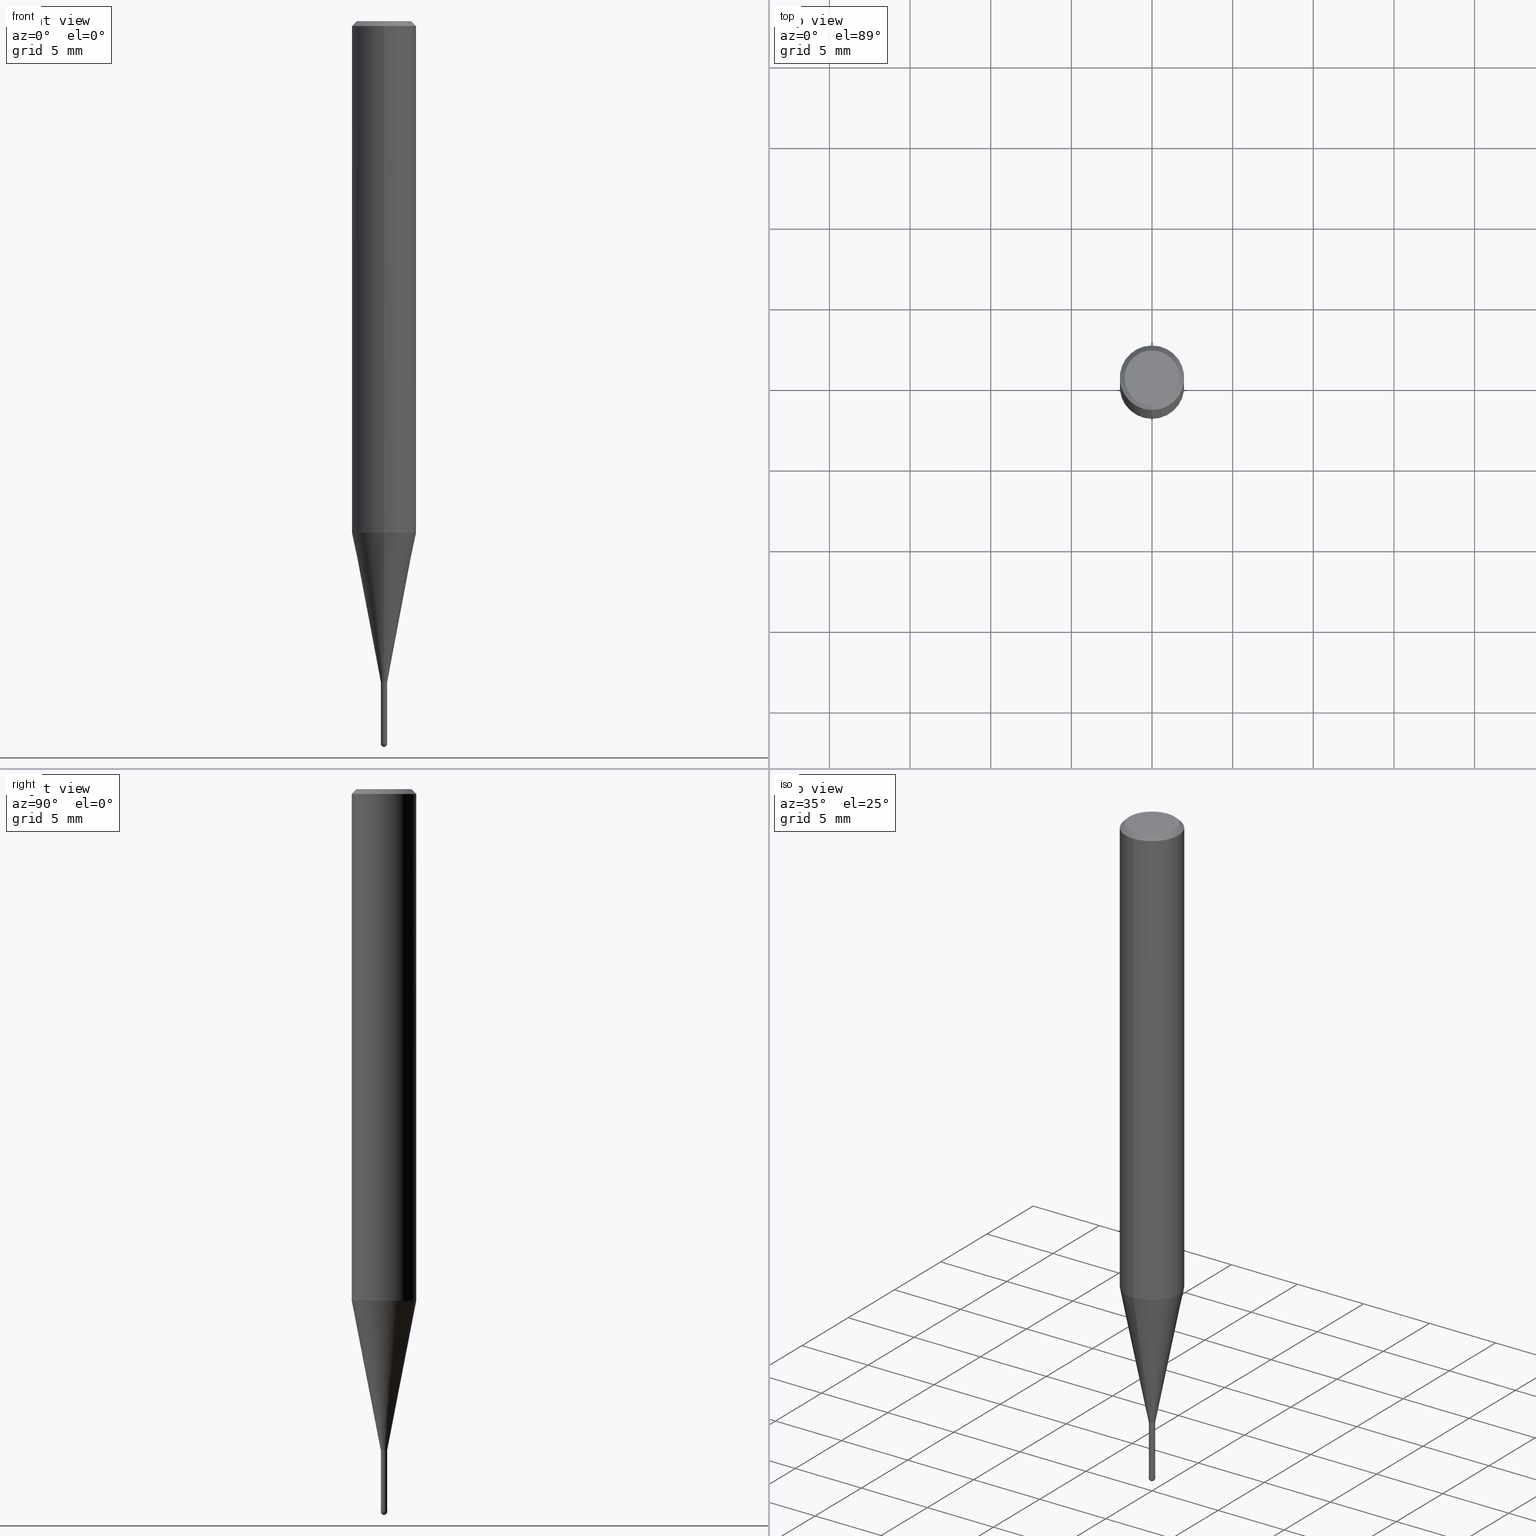
[diagram: canonical four-view strip — front | top / right | iso, engineering-drawing reading convention]
A machine part, canonical four-view strip (front | top / right | iso — engineering-drawing reading convention). The complete STEP part file that produces these views, byte-faithful:
ISO-10303-21;
HEADER;
FILE_DESCRIPTION(('no description'),'unknown implementation level');
FILE_NAME('CSELB2004-040-Huellk.stp','  ',('CIMSOURCE GmbH'),('CADClick - KiM GmbH - www.kimweb.de'),'unknown preprocess','ACIS','unknown authorization');
FILE_SCHEMA(('automotive_design'));
ENDSEC;
DATA;
#1=MECHANICAL_DESIGN_GEOMETRIC_PRESENTATION_REPRESENTATION(' ',(#14,#15,#16,#17,#18,#19,#20,#21,#22,#23,#24,#25,#26,#27,#28,#29,#30,#31,#32,#33,#34,#35,#36,#37,#38,#39,#40,#41,#42,#43,#44,#45,#46,#47,#48,#49,#50,#51,#52,#53,#54,#55,#56,#57,#58,#59,#60,#61,#62,#63,#64,#65,#66,#67,#68,#69,#70,#71,#72,#73,#74),#10);
#2=PRODUCT_DEFINITION_CONTEXT('',#75,'design');
#3=APPLICATION_PROTOCOL_DEFINITION('INTERNATIONAL STANDARD','automotive_design',1994,#75);
#4=PRODUCT_CATEGORY_RELATIONSHIP('NONE','NONE',#76,#77);
#5=SHAPE_DEFINITION_REPRESENTATION(#78,#79);
#6=PRODUCT_DEFINITION_CONTEXT('',#80,'design');
#7=APPLICATION_PROTOCOL_DEFINITION('INTERNATIONAL STANDARD','automotive_design',1994,#80);
#8=PRODUCT_CATEGORY_RELATIONSHIP('NONE','NONE',#81,#82);
#9=SHAPE_DEFINITION_REPRESENTATION(#83,#84);
#10= (GEOMETRIC_REPRESENTATION_CONTEXT(3)GLOBAL_UNCERTAINTY_ASSIGNED_CONTEXT((#87))GLOBAL_UNIT_ASSIGNED_CONTEXT((#89,#90,#91))REPRESENTATION_CONTEXT('NONE','WORKSPACE'));
#14=STYLED_ITEM('',(#93),#94);
#15=STYLED_ITEM('',(#95),#96);
#16=STYLED_ITEM('',(#97),#98);
#17=STYLED_ITEM('',(#99),#100);
#18=STYLED_ITEM('',(#101),#102);
#19=STYLED_ITEM('',(#103),#104);
#20=STYLED_ITEM('',(#105),#106);
#21=STYLED_ITEM('',(#107),#108);
#22=STYLED_ITEM('',(#109),#110);
#23=STYLED_ITEM('',(#111),#112);
#24=STYLED_ITEM('',(#113),#114);
#25=STYLED_ITEM('',(#115),#116);
#26=STYLED_ITEM('',(#117),#118);
#27=STYLED_ITEM('',(#119),#120);
#28=STYLED_ITEM('',(#121),#122);
#29=STYLED_ITEM('',(#123),#124);
#30=STYLED_ITEM('',(#125),#126);
#31=STYLED_ITEM('',(#127),#128);
#32=STYLED_ITEM('',(#129),#130);
#33=STYLED_ITEM('',(#131),#132);
#34=STYLED_ITEM('',(#133),#134);
#35=STYLED_ITEM('',(#135),#136);
#36=STYLED_ITEM('',(#137),#138);
#37=STYLED_ITEM('',(#139),#140);
#38=STYLED_ITEM('',(#141),#142);
#39=STYLED_ITEM('',(#143),#144);
#40=STYLED_ITEM('',(#145),#146);
#41=STYLED_ITEM('',(#147),#148);
#42=STYLED_ITEM('',(#149),#150);
#43=STYLED_ITEM('',(#151),#152);
#44=STYLED_ITEM('',(#153),#154);
#45=STYLED_ITEM('',(#155),#156);
#46=STYLED_ITEM('',(#157),#158);
#47=STYLED_ITEM('',(#159),#160);
#48=STYLED_ITEM('',(#161),#162);
#49=STYLED_ITEM('',(#163),#164);
#50=STYLED_ITEM('',(#165),#166);
#51=STYLED_ITEM('',(#167),#168);
#52=STYLED_ITEM('',(#169),#170);
#53=STYLED_ITEM('',(#171),#172);
#54=STYLED_ITEM('',(#173),#174);
#55=STYLED_ITEM('',(#175),#176);
#56=STYLED_ITEM('',(#177),#178);
#57=STYLED_ITEM('',(#179),#180);
#58=STYLED_ITEM('',(#181),#182);
#59=STYLED_ITEM('',(#183),#184);
#60=STYLED_ITEM('',(#185),#186);
#61=STYLED_ITEM('',(#187),#188);
#62=STYLED_ITEM('',(#189),#190);
#63=STYLED_ITEM('',(#191),#192);
#64=STYLED_ITEM('',(#193),#194);
#65=STYLED_ITEM('',(#195),#196);
#66=STYLED_ITEM('',(#197),#198);
#67=STYLED_ITEM('',(#199),#200);
#68=STYLED_ITEM('',(#201),#202);
#69=STYLED_ITEM('',(#203),#204);
#70=STYLED_ITEM('',(#205),#206);
#71=STYLED_ITEM('',(#207),#208);
#72=STYLED_ITEM('',(#209),#210);
#73=STYLED_ITEM('',(#211),#212);
#74=STYLED_ITEM('',(#213),#214);
#75=APPLICATION_CONTEXT(' ');
#76=PRODUCT_CATEGORY('part','NONE');
#77=PRODUCT_RELATED_PRODUCT_CATEGORY('detail',' ',(#215));
#78=PRODUCT_DEFINITION_SHAPE('NONE','NONE',#216);
#79=ADVANCED_BREP_SHAPE_REPRESENTATION('1',(#180,#217),#10);
#80=APPLICATION_CONTEXT(' ');
#81=PRODUCT_CATEGORY('part','NONE');
#82=PRODUCT_RELATED_PRODUCT_CATEGORY('detail',' ',(#218));
#83=PRODUCT_DEFINITION_SHAPE('NONE','NONE',#219);
#84=ADVANCED_BREP_SHAPE_REPRESENTATION('2',(#146,#220),#10);
#87=UNCERTAINTY_MEASURE_WITH_UNIT(LENGTH_MEASURE(1.0E-006),#89,'','');
#89= (CONVERSION_BASED_UNIT('MILLIMETRE',#223)LENGTH_UNIT()NAMED_UNIT(#226));
#90= (NAMED_UNIT(#228)PLANE_ANGLE_UNIT()SI_UNIT($,.RADIAN.));
#91= (NAMED_UNIT(#228)SOLID_ANGLE_UNIT()SI_UNIT($,.STERADIAN.));
#93=PRESENTATION_STYLE_ASSIGNMENT((#234));
#94=ADVANCED_FACE('',(#235),#236,.T.);
#95=PRESENTATION_STYLE_ASSIGNMENT((#237));
#96=EDGE_CURVE('',#200,#156,#238,.T.);
#97=PRESENTATION_STYLE_ASSIGNMENT((#239));
#98=EDGE_CURVE('',#122,#142,#240,.T.);
#99=PRESENTATION_STYLE_ASSIGNMENT((#241));
#100=EDGE_CURVE('',#198,#116,#242,.T.);
#101=PRESENTATION_STYLE_ASSIGNMENT((#243));
#102=EDGE_CURVE('',#176,#104,#244,.T.);
#103=PRESENTATION_STYLE_ASSIGNMENT((#245));
#104=VERTEX_POINT('',#246);
#105=PRESENTATION_STYLE_ASSIGNMENT((#247));
#106=EDGE_CURVE('',#118,#170,#248,.T.);
#107=PRESENTATION_STYLE_ASSIGNMENT((#249));
#108=ADVANCED_FACE('',(#250),#251,.T.);
#109=PRESENTATION_STYLE_ASSIGNMENT((#252));
#110=EDGE_CURVE('',#142,#176,#253,.T.);
#111=PRESENTATION_STYLE_ASSIGNMENT((#254));
#112=EDGE_CURVE('',#156,#152,#255,.T.);
#113=PRESENTATION_STYLE_ASSIGNMENT((#256));
#114=ADVANCED_FACE('',(#257),#258,.T.);
#115=PRESENTATION_STYLE_ASSIGNMENT((#259));
#116=VERTEX_POINT('',#260);
#117=PRESENTATION_STYLE_ASSIGNMENT((#261));
#118=VERTEX_POINT('',#262);
#119=PRESENTATION_STYLE_ASSIGNMENT((#263));
#120=ADVANCED_FACE('',(#264),#265,.T.);
#121=PRESENTATION_STYLE_ASSIGNMENT((#266));
#122=VERTEX_POINT('',#267);
#123=PRESENTATION_STYLE_ASSIGNMENT((#268));
#124=EDGE_CURVE('',#162,#200,#269,.T.);
#125=PRESENTATION_STYLE_ASSIGNMENT((#270));
#126=EDGE_CURVE('',#166,#118,#271,.T.);
#127=PRESENTATION_STYLE_ASSIGNMENT((#272));
#128=EDGE_CURVE('',#162,#152,#273,.T.);
#129=PRESENTATION_STYLE_ASSIGNMENT((#274));
#130=ADVANCED_FACE('',(#275),#276,.T.);
#131=PRESENTATION_STYLE_ASSIGNMENT((#277));
#132=EDGE_CURVE('',#172,#166,#278,.T.);
#133=PRESENTATION_STYLE_ASSIGNMENT((#279));
#134=VERTEX_POINT('',#280);
#135=PRESENTATION_STYLE_ASSIGNMENT((#281));
#136=EDGE_CURVE('',#170,#118,#282,.T.);
#137=PRESENTATION_STYLE_ASSIGNMENT((#283));
#138=EDGE_CURVE('',#170,#172,#284,.T.);
#139=PRESENTATION_STYLE_ASSIGNMENT((#285));
#140=EDGE_CURVE('',#150,#170,#286,.T.);
#141=PRESENTATION_STYLE_ASSIGNMENT((#287));
#142=VERTEX_POINT('',#288);
#143=PRESENTATION_STYLE_ASSIGNMENT((#289));
#144=EDGE_CURVE('',#166,#172,#290,.T.);
#145=PRESENTATION_STYLE_ASSIGNMENT((#291));
#146=MANIFOLD_SOLID_BREP('2',#292);
#147=PRESENTATION_STYLE_ASSIGNMENT((#293));
#148=ADVANCED_FACE('',(#294),#295,.T.);
#149=PRESENTATION_STYLE_ASSIGNMENT((#296));
#150=VERTEX_POINT('',#297);
#151=PRESENTATION_STYLE_ASSIGNMENT((#298));
#152=VERTEX_POINT('',#299);
#153=PRESENTATION_STYLE_ASSIGNMENT((#300));
#154=EDGE_CURVE('',#162,#152,#301,.T.);
#155=PRESENTATION_STYLE_ASSIGNMENT((#302));
#156=VERTEX_POINT('',#303);
#157=PRESENTATION_STYLE_ASSIGNMENT((#304));
#158=ADVANCED_FACE('',(#305),#306,.T.);
#159=PRESENTATION_STYLE_ASSIGNMENT((#307));
#160=ADVANCED_FACE('',(#308),#309,.T.);
#161=PRESENTATION_STYLE_ASSIGNMENT((#310));
#162=VERTEX_POINT('',#311);
#163=PRESENTATION_STYLE_ASSIGNMENT((#312));
#164=EDGE_CURVE('',#134,#150,#313,.T.);
#165=PRESENTATION_STYLE_ASSIGNMENT((#314));
#166=VERTEX_POINT('',#315);
#167=PRESENTATION_STYLE_ASSIGNMENT((#316));
#168=ADVANCED_FACE('',(#317,#318),#319,.T.);
#169=PRESENTATION_STYLE_ASSIGNMENT((#320));
#170=VERTEX_POINT('',#321);
#171=PRESENTATION_STYLE_ASSIGNMENT((#322));
#172=VERTEX_POINT('',#323);
#173=PRESENTATION_STYLE_ASSIGNMENT((#324));
#174=EDGE_CURVE('',#150,#134,#325,.T.);
#175=PRESENTATION_STYLE_ASSIGNMENT((#326));
#176=VERTEX_POINT('',#327);
#177=PRESENTATION_STYLE_ASSIGNMENT((#328));
#178=EDGE_CURVE('',#118,#134,#329,.T.);
#179=PRESENTATION_STYLE_ASSIGNMENT((#330));
#180=MANIFOLD_SOLID_BREP('1',#331);
#181=PRESENTATION_STYLE_ASSIGNMENT((#332));
#182=EDGE_CURVE('',#104,#122,#333,.T.);
#183=PRESENTATION_STYLE_ASSIGNMENT((#334));
#184=ADVANCED_FACE('',(#335),#336,.T.);
#185=PRESENTATION_STYLE_ASSIGNMENT((#337));
#186=ADVANCED_FACE('',(#338),#339,.T.);
#187=PRESENTATION_STYLE_ASSIGNMENT((#340));
#188=ADVANCED_FACE('',(#341),#342,.T.);
#189=PRESENTATION_STYLE_ASSIGNMENT((#343));
#190=EDGE_CURVE('',#142,#122,#344,.T.);
#191=PRESENTATION_STYLE_ASSIGNMENT((#345));
#192=EDGE_CURVE('',#198,#104,#346,.T.);
#193=PRESENTATION_STYLE_ASSIGNMENT((#347));
#194=ADVANCED_FACE('',(#348),#349,.T.);
#195=PRESENTATION_STYLE_ASSIGNMENT((#350));
#196=EDGE_CURVE('',#176,#116,#351,.T.);
#197=PRESENTATION_STYLE_ASSIGNMENT((#352));
#198=VERTEX_POINT('',#353);
#199=PRESENTATION_STYLE_ASSIGNMENT((#354));
#200=VERTEX_POINT('',#355);
#201=PRESENTATION_STYLE_ASSIGNMENT((#356));
#202=EDGE_CURVE('',#104,#176,#357,.T.);
#203=PRESENTATION_STYLE_ASSIGNMENT((#358));
#204=ADVANCED_FACE('',(#359),#360,.T.);
#205=PRESENTATION_STYLE_ASSIGNMENT((#361));
#206=EDGE_CURVE('',#152,#162,#362,.T.);
#207=PRESENTATION_STYLE_ASSIGNMENT((#363));
#208=EDGE_CURVE('',#116,#198,#364,.T.);
#209=PRESENTATION_STYLE_ASSIGNMENT((#365));
#210=ADVANCED_FACE('',(#366),#367,.T.);
#211=PRESENTATION_STYLE_ASSIGNMENT((#368));
#212=ADVANCED_FACE('',(#369),#370,.T.);
#213=PRESENTATION_STYLE_ASSIGNMENT((#371));
#214=EDGE_CURVE('',#156,#200,#372,.T.);
#215=PRODUCT('1','1','PART-1-DESC',(#373));
#216=PRODUCT_DEFINITION('NONE','NONE',#374,#2);
#217=AXIS2_PLACEMENT_3D('',#375,#376,#377);
#218=PRODUCT('2','2','PART-2-DESC',(#378));
#219=PRODUCT_DEFINITION('NONE','NONE',#379,#6);
#220=AXIS2_PLACEMENT_3D('',#380,#381,#382);
#223=LENGTH_MEASURE_WITH_UNIT(LENGTH_MEASURE(1.0),#383);
#226=DIMENSIONAL_EXPONENTS(1.0,0.0,0.0,0.0,0.0,0.0,0.0);
#228=DIMENSIONAL_EXPONENTS(0.0,0.0,0.0,0.0,0.0,0.0,0.0);
#234=SURFACE_STYLE_USAGE(.BOTH.,#384);
#235=FACE_OUTER_BOUND('',#385,.T.);
#236=CONICAL_SURFACE('',#386,1.09745,0.191984604054908);
#237=CURVE_STYLE('',#387,POSITIVE_LENGTH_MEASURE(1.0E-006),#388);
#238=CIRCLE('',#389,0.1999);
#239=CURVE_STYLE('',#390,POSITIVE_LENGTH_MEASURE(1.0E-006),#391);
#240=CIRCLE('',#392,2.0);
#241=CURVE_STYLE('',#393,POSITIVE_LENGTH_MEASURE(1.0E-006),#394);
#242=CIRCLE('',#395,1.7);
#243=CURVE_STYLE('',#396,POSITIVE_LENGTH_MEASURE(1.0E-006),#397);
#244=CIRCLE('',#398,2.0);
#245=POINT_STYLE(' ',#399,POSITIVE_LENGTH_MEASURE(1.0E-006),#400);
#246=CARTESIAN_POINT('',(0.0,2.0,-0.300000000000001));
#247=CURVE_STYLE('',#401,POSITIVE_LENGTH_MEASURE(1.0E-006),#402);
#248=CIRCLE('',#403,0.19495);
#249=SURFACE_STYLE_USAGE(.BOTH.,#404);
#250=FACE_OUTER_BOUND('',#405,.T.);
#251=CYLINDRICAL_SURFACE('',#406,0.19495);
#252=CURVE_STYLE('',#407,POSITIVE_LENGTH_MEASURE(1.0E-006),#408);
#253=LINE('',#409,#410);
#254=CURVE_STYLE('',#411,POSITIVE_LENGTH_MEASURE(1.0E-006),#412);
#255=LINE('',#413,#414);
#256=SURFACE_STYLE_USAGE(.BOTH.,#415);
#257=FACE_OUTER_BOUND('',#416,.T.);
#258=CONICAL_SURFACE('',#417,1.09745,0.191984604054908);
#259=POINT_STYLE(' ',#418,POSITIVE_LENGTH_MEASURE(1.0E-006),#419);
#260=CARTESIAN_POINT('',(2.08183080149804E-016,-1.7,0.0));
#261=POINT_STYLE(' ',#420,POSITIVE_LENGTH_MEASURE(1.0E-006),#421);
#262=CARTESIAN_POINT('',(2.38737008677672E-017,-0.19495,-41.0));
#263=SURFACE_STYLE_USAGE(.BOTH.,#422);
#264=FACE_OUTER_BOUND('',#423,.T.);
#265=CYLINDRICAL_SURFACE('',#424,2.0);
#266=POINT_STYLE(' ',#425,POSITIVE_LENGTH_MEASURE(1.0E-006),#426);
#267=CARTESIAN_POINT('',(0.0,2.0,-31.714));
#268=CURVE_STYLE('',#427,POSITIVE_LENGTH_MEASURE(1.0E-006),#428);
#269=LINE('',#429,#430);
#270=CURVE_STYLE('',#431,POSITIVE_LENGTH_MEASURE(1.0E-006),#432);
#271=LINE('',#433,#434);
#272=CURVE_STYLE('',#435,POSITIVE_LENGTH_MEASURE(1.0E-006),#436);
#273=CIRCLE('',#437,0.2);
#274=SURFACE_STYLE_USAGE(.BOTH.,#438);
#275=FACE_OUTER_BOUND('',#439,.T.);
#276=CONICAL_SURFACE('',#440,0.19995,0.000833333140432319);
#277=CURVE_STYLE('',#441,POSITIVE_LENGTH_MEASURE(1.0E-006),#442);
#278=CIRCLE('',#443,0.19495);
#279=POINT_STYLE(' ',#444,POSITIVE_LENGTH_MEASURE(1.0E-006),#445);
#280=CARTESIAN_POINT('',(2.44915147732706E-016,-1.99995,-31.714));
#281=CURVE_STYLE('',#446,POSITIVE_LENGTH_MEASURE(1.0E-006),#447);
#282=CIRCLE('',#448,0.19495);
#283=CURVE_STYLE('',#449,POSITIVE_LENGTH_MEASURE(1.0E-006),#450);
#284=LINE('',#451,#452);
#285=CURVE_STYLE('',#453,POSITIVE_LENGTH_MEASURE(1.0E-006),#454);
#286=LINE('',#455,#456);
#287=POINT_STYLE(' ',#457,POSITIVE_LENGTH_MEASURE(1.0E-006),#458);
#288=CARTESIAN_POINT('',(2.44921270764475E-016,-2.0,-31.714));
#289=CURVE_STYLE('',#459,POSITIVE_LENGTH_MEASURE(1.0E-006),#460);
#290=CIRCLE('',#461,0.19495);
#291=SURFACE_STYLE_USAGE(.BOTH.,#462);
#292=CLOSED_SHELL('',(#210,#186,#204,#130,#212));
#293=SURFACE_STYLE_USAGE(.BOTH.,#463);
#294=FACE_OUTER_BOUND('',#464,.T.);
#295=PLANE('',#465);
#296=POINT_STYLE(' ',#466,POSITIVE_LENGTH_MEASURE(1.0E-006),#467);
#297=CARTESIAN_POINT('',(0.0,1.99995,-31.714));
#298=POINT_STYLE(' ',#468,POSITIVE_LENGTH_MEASURE(1.0E-006),#469);
#299=CARTESIAN_POINT('',(0.0,0.2,-44.8));
#300=CURVE_STYLE('',#470,POSITIVE_LENGTH_MEASURE(1.0E-006),#471);
#301=CIRCLE('',#472,0.2);
#302=POINT_STYLE(' ',#473,POSITIVE_LENGTH_MEASURE(1.0E-006),#474);
#303=CARTESIAN_POINT('',(0.0,0.1999,-44.68));
#304=SURFACE_STYLE_USAGE(.BOTH.,#475);
#305=FACE_OUTER_BOUND('',#476,.T.);
#306=CONICAL_SURFACE('',#477,1.85,0.785398163397447);
#307=SURFACE_STYLE_USAGE(.BOTH.,#478);
#308=FACE_OUTER_BOUND('',#479,.T.);
#309=PLANE('',#480);
#310=POINT_STYLE(' ',#481,POSITIVE_LENGTH_MEASURE(1.0E-006),#482);
#311=CARTESIAN_POINT('',(2.44921270764475E-017,-0.2,-44.8));
#312=CURVE_STYLE('',#483,POSITIVE_LENGTH_MEASURE(1.0E-006),#484);
#313=CIRCLE('',#485,1.99995);
#314=POINT_STYLE(' ',#486,POSITIVE_LENGTH_MEASURE(1.0E-006),#487);
#315=CARTESIAN_POINT('',(2.38737008677672E-017,-0.19495,-44.68));
#316=SURFACE_STYLE_USAGE(.BOTH.,#488);
#317=FACE_OUTER_BOUND('',#489,.T.);
#318=FACE_BOUND('',#490,.T.);
#319=PLANE('',#491);
#320=POINT_STYLE(' ',#492,POSITIVE_LENGTH_MEASURE(1.0E-006),#493);
#321=CARTESIAN_POINT('',(0.0,0.19495,-41.0));
#322=POINT_STYLE(' ',#494,POSITIVE_LENGTH_MEASURE(1.0E-006),#495);
#323=CARTESIAN_POINT('',(0.0,0.19495,-44.68));
#324=CURVE_STYLE('',#496,POSITIVE_LENGTH_MEASURE(1.0E-006),#497);
#325=CIRCLE('',#498,1.99995);
#326=POINT_STYLE(' ',#499,POSITIVE_LENGTH_MEASURE(1.0E-006),#500);
#327=CARTESIAN_POINT('',(2.44921270764475E-016,-2.0,-0.300000000000001));
#328=CURVE_STYLE('',#501,POSITIVE_LENGTH_MEASURE(1.0E-006),#502);
#329=LINE('',#503,#504);
#330=SURFACE_STYLE_USAGE(.BOTH.,#505);
#331=CLOSED_SHELL('',(#108,#114,#120,#194,#168,#160,#158,#184,#94,#188,#148));
#332=CURVE_STYLE('',#506,POSITIVE_LENGTH_MEASURE(1.0E-006),#507);
#333=LINE('',#508,#509);
#334=SURFACE_STYLE_USAGE(.BOTH.,#510);
#335=FACE_OUTER_BOUND('',#511,.T.);
#336=CYLINDRICAL_SURFACE('',#512,2.0);
#337=SURFACE_STYLE_USAGE(.BOTH.,#513);
#338=FACE_OUTER_BOUND('',#514,.T.);
#339=CONICAL_SURFACE('',#515,0.19995,0.000833333140432319);
#340=SURFACE_STYLE_USAGE(.BOTH.,#516);
#341=FACE_OUTER_BOUND('',#517,.T.);
#342=CYLINDRICAL_SURFACE('',#518,0.19495);
#343=CURVE_STYLE('',#519,POSITIVE_LENGTH_MEASURE(1.0E-006),#520);
#344=CIRCLE('',#521,2.0);
#345=CURVE_STYLE('',#522,POSITIVE_LENGTH_MEASURE(1.0E-006),#523);
#346=LINE('',#524,#525);
#347=SURFACE_STYLE_USAGE(.BOTH.,#526);
#348=FACE_OUTER_BOUND('',#527,.T.);
#349=CONICAL_SURFACE('',#528,1.85,0.785398163397447);
#350=CURVE_STYLE('',#529,POSITIVE_LENGTH_MEASURE(1.0E-006),#530);
#351=LINE('',#531,#532);
#352=POINT_STYLE(' ',#533,POSITIVE_LENGTH_MEASURE(1.0E-006),#534);
#353=CARTESIAN_POINT('',(0.0,1.7,0.0));
#354=POINT_STYLE(' ',#535,POSITIVE_LENGTH_MEASURE(1.0E-006),#536);
#355=CARTESIAN_POINT('',(2.44798810129093E-017,-0.1999,-44.68));
#356=CURVE_STYLE('',#537,POSITIVE_LENGTH_MEASURE(1.0E-006),#538);
#357=CIRCLE('',#539,2.0);
#358=SURFACE_STYLE_USAGE(.BOTH.,#540);
#359=FACE_OUTER_BOUND('',#541,.T.);
#360=PLANE('',#542);
#361=CURVE_STYLE('',#543,POSITIVE_LENGTH_MEASURE(1.0E-006),#544);
#362=CIRCLE('',#545,0.2);
#363=CURVE_STYLE('',#546,POSITIVE_LENGTH_MEASURE(1.0E-006),#547);
#364=CIRCLE('',#548,1.7);
#365=SURFACE_STYLE_USAGE(.BOTH.,#549);
#366=FACE_OUTER_BOUND('',#550,.T.);
#367=SPHERICAL_SURFACE('',#551,0.2);
#368=SURFACE_STYLE_USAGE(.BOTH.,#552);
#369=FACE_OUTER_BOUND('',#553,.T.);
#370=SPHERICAL_SURFACE('',#554,0.2);
#371=CURVE_STYLE('',#555,POSITIVE_LENGTH_MEASURE(1.0E-006),#556);
#372=CIRCLE('',#557,0.1999);
#373=PRODUCT_CONTEXT('',#75,'mechanical');
#374=PRODUCT_DEFINITION_FORMATION_WITH_SPECIFIED_SOURCE(' ','NONE',#215,.NOT_KNOWN.);
#375=CARTESIAN_POINT('',(0.0,0.0,0.0));
#376=DIRECTION('',(0.0,0.0,1.0));
#377=DIRECTION('',(1.0,0.0,0.0));
#378=PRODUCT_CONTEXT('',#80,'mechanical');
#379=PRODUCT_DEFINITION_FORMATION_WITH_SPECIFIED_SOURCE(' ','NONE',#218,.NOT_KNOWN.);
#380=CARTESIAN_POINT('',(0.0,0.0,0.0));
#381=DIRECTION('',(0.0,0.0,1.0));
#382=DIRECTION('',(1.0,0.0,0.0));
#383= (NAMED_UNIT(#226)LENGTH_UNIT()SI_UNIT(.MILLI.,.METRE.));
#384=SURFACE_SIDE_STYLE('',(#559));
#385=EDGE_LOOP('',(#560,#561,#562,#563));
#386=AXIS2_PLACEMENT_3D('',#564,#565,#566);
#387=DRAUGHTING_PRE_DEFINED_CURVE_FONT('continuous');
#388=COLOUR_RGB('',0.800000011920929,0.800000011920929,0.800000011920929);
#389=AXIS2_PLACEMENT_3D('',#567,#568,#569);
#390=DRAUGHTING_PRE_DEFINED_CURVE_FONT('continuous');
#391=COLOUR_RGB('',0.498039215803146,0.498039215803146,0.498039215803146);
#392=AXIS2_PLACEMENT_3D('',#570,#571,#572);
#393=DRAUGHTING_PRE_DEFINED_CURVE_FONT('continuous');
#394=COLOUR_RGB('',0.498039215803146,0.498039215803146,0.498039215803146);
#395=AXIS2_PLACEMENT_3D('',#573,#574,#575);
#396=DRAUGHTING_PRE_DEFINED_CURVE_FONT('continuous');
#397=COLOUR_RGB('',0.498039215803146,0.498039215803146,0.498039215803146);
#398=AXIS2_PLACEMENT_3D('',#576,#577,#578);
#399=PRE_DEFINED_MARKER('');
#400=COLOUR_RGB('',0.498039215803146,0.498039215803146,0.498039215803146);
#401=DRAUGHTING_PRE_DEFINED_CURVE_FONT('continuous');
#402=COLOUR_RGB('',0.498039215803146,0.498039215803146,0.498039215803146);
#403=AXIS2_PLACEMENT_3D('',#579,#580,#581);
#404=SURFACE_SIDE_STYLE('',(#582));
#405=EDGE_LOOP('',(#583,#584,#585,#586));
#406=AXIS2_PLACEMENT_3D('',#587,#588,#589);
#407=DRAUGHTING_PRE_DEFINED_CURVE_FONT('continuous');
#408=COLOUR_RGB('',0.498039215803146,0.498039215803146,0.498039215803146);
#409=CARTESIAN_POINT('',(2.44921270764475E-016,-2.0,-16.007));
#410=VECTOR('',#590,1.0);
#411=DRAUGHTING_PRE_DEFINED_CURVE_FONT('continuous');
#412=COLOUR_RGB('',0.800000011920929,0.800000011920929,0.800000011920929);
#413=CARTESIAN_POINT('',(-2.44860040446784E-017,0.19995,-44.74));
#414=VECTOR('',#591,1.0);
#415=SURFACE_SIDE_STYLE('',(#592));
#416=EDGE_LOOP('',(#593,#594,#595,#596));
#417=AXIS2_PLACEMENT_3D('',#597,#598,#599);
#418=PRE_DEFINED_MARKER('');
#419=COLOUR_RGB('',0.498039215803146,0.498039215803146,0.498039215803146);
#420=PRE_DEFINED_MARKER('');
#421=COLOUR_RGB('',0.498039215803146,0.498039215803146,0.498039215803146);
#422=SURFACE_SIDE_STYLE('',(#600));
#423=EDGE_LOOP('',(#601,#602,#603,#604));
#424=AXIS2_PLACEMENT_3D('',#605,#606,#607);
#425=PRE_DEFINED_MARKER('');
#426=COLOUR_RGB('',0.498039215803146,0.498039215803146,0.498039215803146);
#427=DRAUGHTING_PRE_DEFINED_CURVE_FONT('continuous');
#428=COLOUR_RGB('',0.800000011920929,0.800000011920929,0.800000011920929);
#429=CARTESIAN_POINT('',(2.44860040446784E-017,-0.19995,-44.74));
#430=VECTOR('',#608,1.0);
#431=DRAUGHTING_PRE_DEFINED_CURVE_FONT('continuous');
#432=COLOUR_RGB('',0.498039215803146,0.498039215803146,0.498039215803146);
#433=CARTESIAN_POINT('',(2.38737008677672E-017,-0.19495,-42.84));
#434=VECTOR('',#609,1.0);
#435=DRAUGHTING_PRE_DEFINED_CURVE_FONT('continuous');
#436=COLOUR_RGB('',0.800000011920929,0.800000011920929,0.800000011920929);
#437=AXIS2_PLACEMENT_3D('',#610,#611,#612);
#438=SURFACE_SIDE_STYLE('',(#613));
#439=EDGE_LOOP('',(#614,#615,#616,#617));
#440=AXIS2_PLACEMENT_3D('',#618,#619,#620);
#441=DRAUGHTING_PRE_DEFINED_CURVE_FONT('continuous');
#442=COLOUR_RGB('',0.498039215803146,0.498039215803146,0.498039215803146);
#443=AXIS2_PLACEMENT_3D('',#621,#622,#623);
#444=PRE_DEFINED_MARKER('');
#445=COLOUR_RGB('',0.498039215803146,0.498039215803146,0.498039215803146);
#446=DRAUGHTING_PRE_DEFINED_CURVE_FONT('continuous');
#447=COLOUR_RGB('',0.498039215803146,0.498039215803146,0.498039215803146);
#448=AXIS2_PLACEMENT_3D('',#624,#625,#626);
#449=DRAUGHTING_PRE_DEFINED_CURVE_FONT('continuous');
#450=COLOUR_RGB('',0.498039215803146,0.498039215803146,0.498039215803146);
#451=CARTESIAN_POINT('',(-2.38737008677672E-017,0.19495,-42.84));
#452=VECTOR('',#627,1.0);
#453=DRAUGHTING_PRE_DEFINED_CURVE_FONT('continuous');
#454=COLOUR_RGB('',0.498039215803146,0.498039215803146,0.498039215803146);
#455=CARTESIAN_POINT('',(-1.34394424300237E-016,1.09745,-36.357));
#456=VECTOR('',#628,1.0);
#457=PRE_DEFINED_MARKER('');
#458=COLOUR_RGB('',0.498039215803146,0.498039215803146,0.498039215803146);
#459=DRAUGHTING_PRE_DEFINED_CURVE_FONT('continuous');
#460=COLOUR_RGB('',0.498039215803146,0.498039215803146,0.498039215803146);
#461=AXIS2_PLACEMENT_3D('',#629,#630,#631);
#462=SURFACE_SIDE_STYLE('',(#632));
#463=SURFACE_SIDE_STYLE('',(#633));
#464=EDGE_LOOP('',(#634,#635));
#465=AXIS2_PLACEMENT_3D('',#636,#637,#638);
#466=PRE_DEFINED_MARKER('');
#467=COLOUR_RGB('',0.498039215803146,0.498039215803146,0.498039215803146);
#468=PRE_DEFINED_MARKER('');
#469=COLOUR_RGB('',0.800000011920929,0.800000011920929,0.800000011920929);
#470=DRAUGHTING_PRE_DEFINED_CURVE_FONT('continuous');
#471=COLOUR_RGB('',0.800000011920929,0.800000011920929,0.800000011920929);
#472=AXIS2_PLACEMENT_3D('',#639,#640,#641);
#473=PRE_DEFINED_MARKER('');
#474=COLOUR_RGB('',0.800000011920929,0.800000011920929,0.800000011920929);
#475=SURFACE_SIDE_STYLE('',(#642));
#476=EDGE_LOOP('',(#643,#644,#645,#646));
#477=AXIS2_PLACEMENT_3D('',#647,#648,#649);
#478=SURFACE_SIDE_STYLE('',(#650));
#479=EDGE_LOOP('',(#651,#652));
#480=AXIS2_PLACEMENT_3D('',#653,#654,#655);
#481=PRE_DEFINED_MARKER('');
#482=COLOUR_RGB('',0.800000011920929,0.800000011920929,0.800000011920929);
#483=DRAUGHTING_PRE_DEFINED_CURVE_FONT('continuous');
#484=COLOUR_RGB('',0.498039215803146,0.498039215803146,0.498039215803146);
#485=AXIS2_PLACEMENT_3D('',#656,#657,#658);
#486=PRE_DEFINED_MARKER('');
#487=COLOUR_RGB('',0.498039215803146,0.498039215803146,0.498039215803146);
#488=SURFACE_SIDE_STYLE('',(#659));
#489=EDGE_LOOP('',(#660,#661));
#490=EDGE_LOOP('',(#662,#663));
#491=AXIS2_PLACEMENT_3D('',#664,#665,#666);
#492=PRE_DEFINED_MARKER('');
#493=COLOUR_RGB('',0.498039215803146,0.498039215803146,0.498039215803146);
#494=PRE_DEFINED_MARKER('');
#495=COLOUR_RGB('',0.498039215803146,0.498039215803146,0.498039215803146);
#496=DRAUGHTING_PRE_DEFINED_CURVE_FONT('continuous');
#497=COLOUR_RGB('',0.498039215803146,0.498039215803146,0.498039215803146);
#498=AXIS2_PLACEMENT_3D('',#667,#668,#669);
#499=PRE_DEFINED_MARKER('');
#500=COLOUR_RGB('',0.498039215803146,0.498039215803146,0.498039215803146);
#501=DRAUGHTING_PRE_DEFINED_CURVE_FONT('continuous');
#502=COLOUR_RGB('',0.498039215803146,0.498039215803146,0.498039215803146);
#503=CARTESIAN_POINT('',(1.34394424300237E-016,-1.09745,-36.357));
#504=VECTOR('',#670,1.0);
#505=SURFACE_SIDE_STYLE('',(#671));
#506=DRAUGHTING_PRE_DEFINED_CURVE_FONT('continuous');
#507=COLOUR_RGB('',0.498039215803146,0.498039215803146,0.498039215803146);
#508=CARTESIAN_POINT('',(-2.44921270764475E-016,2.0,-16.007));
#509=VECTOR('',#672,1.0);
#510=SURFACE_SIDE_STYLE('',(#673));
#511=EDGE_LOOP('',(#674,#675,#676,#677));
#512=AXIS2_PLACEMENT_3D('',#678,#679,#680);
#513=SURFACE_SIDE_STYLE('',(#681));
#514=EDGE_LOOP('',(#682,#683,#684,#685));
#515=AXIS2_PLACEMENT_3D('',#686,#687,#688);
#516=SURFACE_SIDE_STYLE('',(#689));
#517=EDGE_LOOP('',(#690,#691,#692,#693));
#518=AXIS2_PLACEMENT_3D('',#694,#695,#696);
#519=DRAUGHTING_PRE_DEFINED_CURVE_FONT('continuous');
#520=COLOUR_RGB('',0.498039215803146,0.498039215803146,0.498039215803146);
#521=AXIS2_PLACEMENT_3D('',#697,#698,#699);
#522=DRAUGHTING_PRE_DEFINED_CURVE_FONT('continuous');
#523=COLOUR_RGB('',0.498039215803146,0.498039215803146,0.498039215803146);
#524=CARTESIAN_POINT('',(-2.2655217545714E-016,1.85,-0.149999999999999));
#525=VECTOR('',#700,1.0);
#526=SURFACE_SIDE_STYLE('',(#701));
#527=EDGE_LOOP('',(#702,#703,#704,#705));
#528=AXIS2_PLACEMENT_3D('',#706,#707,#708);
#529=DRAUGHTING_PRE_DEFINED_CURVE_FONT('continuous');
#530=COLOUR_RGB('',0.498039215803146,0.498039215803146,0.498039215803146);
#531=CARTESIAN_POINT('',(2.2655217545714E-016,-1.85,-0.149999999999999));
#532=VECTOR('',#709,1.0);
#533=PRE_DEFINED_MARKER('');
#534=COLOUR_RGB('',0.498039215803146,0.498039215803146,0.498039215803146);
#535=PRE_DEFINED_MARKER('');
#536=COLOUR_RGB('',0.800000011920929,0.800000011920929,0.800000011920929);
#537=DRAUGHTING_PRE_DEFINED_CURVE_FONT('continuous');
#538=COLOUR_RGB('',0.498039215803146,0.498039215803146,0.498039215803146);
#539=AXIS2_PLACEMENT_3D('',#710,#711,#712);
#540=SURFACE_SIDE_STYLE('',(#713));
#541=EDGE_LOOP('',(#714,#715));
#542=AXIS2_PLACEMENT_3D('',#716,#717,#718);
#543=DRAUGHTING_PRE_DEFINED_CURVE_FONT('continuous');
#544=COLOUR_RGB('',0.800000011920929,0.800000011920929,0.800000011920929);
#545=AXIS2_PLACEMENT_3D('',#719,#720,#721);
#546=DRAUGHTING_PRE_DEFINED_CURVE_FONT('continuous');
#547=COLOUR_RGB('',0.498039215803146,0.498039215803146,0.498039215803146);
#548=AXIS2_PLACEMENT_3D('',#722,#723,#724);
#549=SURFACE_SIDE_STYLE('',(#725));
#550=EDGE_LOOP('',(#726,#727));
#551=AXIS2_PLACEMENT_3D('',#728,#729,#730);
#552=SURFACE_SIDE_STYLE('',(#731));
#553=EDGE_LOOP('',(#732,#733));
#554=AXIS2_PLACEMENT_3D('',#734,#735,#736);
#555=DRAUGHTING_PRE_DEFINED_CURVE_FONT('continuous');
#556=COLOUR_RGB('',0.800000011920929,0.800000011920929,0.800000011920929);
#557=AXIS2_PLACEMENT_3D('',#737,#738,#739);
#559=SURFACE_STYLE_FILL_AREA(#740);
#560=ORIENTED_EDGE('',*,*,#140,.T.);
#561=ORIENTED_EDGE('',*,*,#106,.F.);
#562=ORIENTED_EDGE('',*,*,#178,.T.);
#563=ORIENTED_EDGE('',*,*,#164,.T.);
#564=CARTESIAN_POINT('',(0.0,0.0,-36.357));
#565=DIRECTION('',(-0.0,-0.0,1.0));
#566=DIRECTION('',(0.0,1.0,0.0));
#567=CARTESIAN_POINT('',(0.0,0.0,-44.68));
#568=DIRECTION('',(0.0,0.0,-1.0));
#569=DIRECTION('',(0.0,1.0,0.0));
#570=CARTESIAN_POINT('',(0.0,0.0,-31.714));
#571=DIRECTION('',(0.0,0.0,-1.0));
#572=DIRECTION('',(0.0,1.0,0.0));
#573=CARTESIAN_POINT('',(0.0,0.0,0.0));
#574=DIRECTION('',(0.0,0.0,-1.0));
#575=DIRECTION('',(0.0,1.0,0.0));
#576=CARTESIAN_POINT('',(0.0,0.0,-0.300000000000001));
#577=DIRECTION('',(0.0,0.0,-1.0));
#578=DIRECTION('',(0.0,1.0,0.0));
#579=CARTESIAN_POINT('',(0.0,0.0,-41.0));
#580=DIRECTION('',(0.0,0.0,-1.0));
#581=DIRECTION('',(0.0,1.0,0.0));
#582=SURFACE_STYLE_FILL_AREA(#741);
#583=ORIENTED_EDGE('',*,*,#138,.F.);
#584=ORIENTED_EDGE('',*,*,#136,.T.);
#585=ORIENTED_EDGE('',*,*,#126,.F.);
#586=ORIENTED_EDGE('',*,*,#132,.F.);
#587=CARTESIAN_POINT('',(0.0,0.0,-42.84));
#588=DIRECTION('',(-0.0,-0.0,1.0));
#589=DIRECTION('',(0.0,1.0,0.0));
#590=DIRECTION('',(-0.0,-0.0,1.0));
#591=DIRECTION('',(-1.02050494051022E-019,0.000833333043981772,-0.999999652777959));
#592=SURFACE_STYLE_FILL_AREA(#742);
#593=ORIENTED_EDGE('',*,*,#140,.F.);
#594=ORIENTED_EDGE('',*,*,#174,.T.);
#595=ORIENTED_EDGE('',*,*,#178,.F.);
#596=ORIENTED_EDGE('',*,*,#136,.F.);
#597=CARTESIAN_POINT('',(0.0,0.0,-36.357));
#598=DIRECTION('',(-0.0,-0.0,1.0));
#599=DIRECTION('',(0.0,1.0,0.0));
#600=SURFACE_STYLE_FILL_AREA(#743);
#601=ORIENTED_EDGE('',*,*,#182,.F.);
#602=ORIENTED_EDGE('',*,*,#202,.T.);
#603=ORIENTED_EDGE('',*,*,#110,.F.);
#604=ORIENTED_EDGE('',*,*,#98,.F.);
#605=CARTESIAN_POINT('',(0.0,0.0,-16.007));
#606=DIRECTION('',(-0.0,-0.0,1.0));
#607=DIRECTION('',(0.0,1.0,0.0));
#608=DIRECTION('',(-1.02050494051022E-019,0.000833333043981772,0.999999652777959));
#609=DIRECTION('',(-0.0,-0.0,1.0));
#610=CARTESIAN_POINT('',(0.0,0.0,-44.8));
#611=DIRECTION('',(1.0,0.0,1.22460635382236E-016));
#612=DIRECTION('',(-1.22460635382236E-016,0.0,1.0));
#613=SURFACE_STYLE_FILL_AREA(#744);
#614=ORIENTED_EDGE('',*,*,#112,.T.);
#615=ORIENTED_EDGE('',*,*,#154,.F.);
#616=ORIENTED_EDGE('',*,*,#124,.T.);
#617=ORIENTED_EDGE('',*,*,#96,.T.);
#618=CARTESIAN_POINT('',(0.0,0.0,-44.74));
#619=DIRECTION('',(0.0,-0.0,-1.0));
#620=DIRECTION('',(0.0,1.0,0.0));
#621=CARTESIAN_POINT('',(0.0,0.0,-44.68));
#622=DIRECTION('',(0.0,0.0,-1.0));
#623=DIRECTION('',(0.0,1.0,0.0));
#624=CARTESIAN_POINT('',(0.0,0.0,-41.0));
#625=DIRECTION('',(0.0,0.0,-1.0));
#626=DIRECTION('',(0.0,1.0,0.0));
#627=DIRECTION('',(0.0,0.0,-1.0));
#628=DIRECTION('',(2.33663968307108E-017,-0.190807411359389,-0.981627491348082));
#629=CARTESIAN_POINT('',(0.0,0.0,-44.68));
#630=DIRECTION('',(0.0,0.0,-1.0));
#631=DIRECTION('',(0.0,1.0,0.0));
#632=SURFACE_STYLE_FILL_AREA(#745);
#633=SURFACE_STYLE_FILL_AREA(#746);
#634=ORIENTED_EDGE('',*,*,#132,.T.);
#635=ORIENTED_EDGE('',*,*,#144,.T.);
#636=CARTESIAN_POINT('',(0.0,0.097475,-44.68));
#637=DIRECTION('',(0.0,0.0,-1.0));
#638=DIRECTION('',(0.0,1.0,0.0));
#639=CARTESIAN_POINT('',(0.0,0.0,-44.8));
#640=DIRECTION('',(0.0,0.0,-1.0));
#641=DIRECTION('',(0.0,1.0,0.0));
#642=SURFACE_STYLE_FILL_AREA(#747);
#643=ORIENTED_EDGE('',*,*,#192,.T.);
#644=ORIENTED_EDGE('',*,*,#102,.F.);
#645=ORIENTED_EDGE('',*,*,#196,.T.);
#646=ORIENTED_EDGE('',*,*,#208,.T.);
#647=CARTESIAN_POINT('',(0.0,0.0,-0.149999999999999));
#648=DIRECTION('',(0.0,-0.0,-1.0));
#649=DIRECTION('',(0.0,1.0,0.0));
#650=SURFACE_STYLE_FILL_AREA(#748);
#651=ORIENTED_EDGE('',*,*,#100,.F.);
#652=ORIENTED_EDGE('',*,*,#208,.F.);
#653=CARTESIAN_POINT('',(0.0,0.85,0.0));
#654=DIRECTION('',(-0.0,0.0,1.0));
#655=DIRECTION('',(0.0,-1.0,0.0));
#656=CARTESIAN_POINT('',(0.0,0.0,-31.714));
#657=DIRECTION('',(0.0,0.0,-1.0));
#658=DIRECTION('',(0.0,1.0,0.0));
#659=SURFACE_STYLE_FILL_AREA(#749);
#660=ORIENTED_EDGE('',*,*,#98,.T.);
#661=ORIENTED_EDGE('',*,*,#190,.T.);
#662=ORIENTED_EDGE('',*,*,#174,.F.);
#663=ORIENTED_EDGE('',*,*,#164,.F.);
#664=CARTESIAN_POINT('',(0.0,1.0,-31.714));
#665=DIRECTION('',(0.0,0.0,-1.0));
#666=DIRECTION('',(0.0,1.0,0.0));
#667=CARTESIAN_POINT('',(0.0,0.0,-31.714));
#668=DIRECTION('',(0.0,0.0,-1.0));
#669=DIRECTION('',(0.0,1.0,0.0));
#670=DIRECTION('',(2.33663968307108E-017,-0.190807411359389,0.981627491348082));
#671=SURFACE_STYLE_FILL_AREA(#750);
#672=DIRECTION('',(0.0,0.0,-1.0));
#673=SURFACE_STYLE_FILL_AREA(#751);
#674=ORIENTED_EDGE('',*,*,#182,.T.);
#675=ORIENTED_EDGE('',*,*,#190,.F.);
#676=ORIENTED_EDGE('',*,*,#110,.T.);
#677=ORIENTED_EDGE('',*,*,#102,.T.);
#678=CARTESIAN_POINT('',(0.0,0.0,-16.007));
#679=DIRECTION('',(-0.0,-0.0,1.0));
#680=DIRECTION('',(0.0,1.0,0.0));
#681=SURFACE_STYLE_FILL_AREA(#752);
#682=ORIENTED_EDGE('',*,*,#112,.F.);
#683=ORIENTED_EDGE('',*,*,#214,.T.);
#684=ORIENTED_EDGE('',*,*,#124,.F.);
#685=ORIENTED_EDGE('',*,*,#206,.F.);
#686=CARTESIAN_POINT('',(0.0,0.0,-44.74));
#687=DIRECTION('',(0.0,-0.0,-1.0));
#688=DIRECTION('',(0.0,1.0,0.0));
#689=SURFACE_STYLE_FILL_AREA(#753);
#690=ORIENTED_EDGE('',*,*,#138,.T.);
#691=ORIENTED_EDGE('',*,*,#144,.F.);
#692=ORIENTED_EDGE('',*,*,#126,.T.);
#693=ORIENTED_EDGE('',*,*,#106,.T.);
#694=CARTESIAN_POINT('',(0.0,0.0,-42.84));
#695=DIRECTION('',(-0.0,-0.0,1.0));
#696=DIRECTION('',(0.0,1.0,0.0));
#697=CARTESIAN_POINT('',(0.0,0.0,-31.714));
#698=DIRECTION('',(0.0,0.0,-1.0));
#699=DIRECTION('',(0.0,1.0,0.0));
#700=DIRECTION('',(-8.65927457071934E-017,0.707106781186546,-0.707106781186549));
#701=SURFACE_STYLE_FILL_AREA(#754);
#702=ORIENTED_EDGE('',*,*,#192,.F.);
#703=ORIENTED_EDGE('',*,*,#100,.T.);
#704=ORIENTED_EDGE('',*,*,#196,.F.);
#705=ORIENTED_EDGE('',*,*,#202,.F.);
#706=CARTESIAN_POINT('',(0.0,0.0,-0.149999999999999));
#707=DIRECTION('',(0.0,-0.0,-1.0));
#708=DIRECTION('',(0.0,1.0,0.0));
#709=DIRECTION('',(-8.65927457071934E-017,0.707106781186546,0.707106781186549));
#710=CARTESIAN_POINT('',(0.0,0.0,-0.300000000000001));
#711=DIRECTION('',(0.0,0.0,-1.0));
#712=DIRECTION('',(0.0,1.0,0.0));
#713=SURFACE_STYLE_FILL_AREA(#755);
#714=ORIENTED_EDGE('',*,*,#214,.F.);
#715=ORIENTED_EDGE('',*,*,#96,.F.);
#716=CARTESIAN_POINT('',(0.0,0.09995,-44.68));
#717=DIRECTION('',(-0.0,0.0,1.0));
#718=DIRECTION('',(0.0,-1.0,0.0));
#719=CARTESIAN_POINT('',(0.0,0.0,-44.8));
#720=DIRECTION('',(0.0,0.0,-1.0));
#721=DIRECTION('',(0.0,1.0,0.0));
#722=CARTESIAN_POINT('',(0.0,0.0,0.0));
#723=DIRECTION('',(0.0,0.0,-1.0));
#724=DIRECTION('',(0.0,1.0,0.0));
#725=SURFACE_STYLE_FILL_AREA(#756);
#726=ORIENTED_EDGE('',*,*,#128,.F.);
#727=ORIENTED_EDGE('',*,*,#154,.T.);
#728=CARTESIAN_POINT('',(0.0,0.0,-44.8));
#729=DIRECTION('',(0.0,1.0,0.0));
#730=DIRECTION('',(0.0,0.0,-1.0));
#731=SURFACE_STYLE_FILL_AREA(#757);
#732=ORIENTED_EDGE('',*,*,#128,.T.);
#733=ORIENTED_EDGE('',*,*,#206,.T.);
#734=CARTESIAN_POINT('',(0.0,0.0,-44.8));
#735=DIRECTION('',(0.0,1.0,0.0));
#736=DIRECTION('',(0.0,0.0,-1.0));
#737=CARTESIAN_POINT('',(0.0,0.0,-44.68));
#738=DIRECTION('',(0.0,0.0,-1.0));
#739=DIRECTION('',(0.0,1.0,0.0));
#740=FILL_AREA_STYLE('',(#758));
#741=FILL_AREA_STYLE('',(#759));
#742=FILL_AREA_STYLE('',(#760));
#743=FILL_AREA_STYLE('',(#761));
#744=FILL_AREA_STYLE('',(#762));
#745=FILL_AREA_STYLE('',(#763));
#746=FILL_AREA_STYLE('',(#764));
#747=FILL_AREA_STYLE('',(#765));
#748=FILL_AREA_STYLE('',(#766));
#749=FILL_AREA_STYLE('',(#767));
#750=FILL_AREA_STYLE('',(#768));
#751=FILL_AREA_STYLE('',(#769));
#752=FILL_AREA_STYLE('',(#770));
#753=FILL_AREA_STYLE('',(#771));
#754=FILL_AREA_STYLE('',(#772));
#755=FILL_AREA_STYLE('',(#773));
#756=FILL_AREA_STYLE('',(#774));
#757=FILL_AREA_STYLE('',(#775));
#758=FILL_AREA_STYLE_COLOUR('',#776);
#759=FILL_AREA_STYLE_COLOUR('',#777);
#760=FILL_AREA_STYLE_COLOUR('',#778);
#761=FILL_AREA_STYLE_COLOUR('',#779);
#762=FILL_AREA_STYLE_COLOUR('',#780);
#763=FILL_AREA_STYLE_COLOUR('',#781);
#764=FILL_AREA_STYLE_COLOUR('',#782);
#765=FILL_AREA_STYLE_COLOUR('',#783);
#766=FILL_AREA_STYLE_COLOUR('',#784);
#767=FILL_AREA_STYLE_COLOUR('',#785);
#768=FILL_AREA_STYLE_COLOUR('',#786);
#769=FILL_AREA_STYLE_COLOUR('',#787);
#770=FILL_AREA_STYLE_COLOUR('',#788);
#771=FILL_AREA_STYLE_COLOUR('',#789);
#772=FILL_AREA_STYLE_COLOUR('',#790);
#773=FILL_AREA_STYLE_COLOUR('',#791);
#774=FILL_AREA_STYLE_COLOUR('',#792);
#775=FILL_AREA_STYLE_COLOUR('',#793);
#776=COLOUR_RGB('',0.498039215803146,0.498039215803146,0.498039215803146);
#777=COLOUR_RGB('',0.498039215803146,0.498039215803146,0.498039215803146);
#778=COLOUR_RGB('',0.498039215803146,0.498039215803146,0.498039215803146);
#779=COLOUR_RGB('',0.498039215803146,0.498039215803146,0.498039215803146);
#780=COLOUR_RGB('',0.800000011920929,0.800000011920929,0.800000011920929);
#781=COLOUR_RGB('',0.800000011920929,0.800000011920929,0.800000011920929);
#782=COLOUR_RGB('',0.498039215803146,0.498039215803146,0.498039215803146);
#783=COLOUR_RGB('',0.498039215803146,0.498039215803146,0.498039215803146);
#784=COLOUR_RGB('',0.498039215803146,0.498039215803146,0.498039215803146);
#785=COLOUR_RGB('',0.498039215803146,0.498039215803146,0.498039215803146);
#786=COLOUR_RGB('',0.498039215803146,0.498039215803146,0.498039215803146);
#787=COLOUR_RGB('',0.498039215803146,0.498039215803146,0.498039215803146);
#788=COLOUR_RGB('',0.800000011920929,0.800000011920929,0.800000011920929);
#789=COLOUR_RGB('',0.498039215803146,0.498039215803146,0.498039215803146);
#790=COLOUR_RGB('',0.498039215803146,0.498039215803146,0.498039215803146);
#791=COLOUR_RGB('',0.800000011920929,0.800000011920929,0.800000011920929);
#792=COLOUR_RGB('',0.800000011920929,0.800000011920929,0.800000011920929);
#793=COLOUR_RGB('',0.800000011920929,0.800000011920929,0.800000011920929);
#794=AXIS2_PLACEMENT_3D('PCS',#795,#796,#797);
#795=CARTESIAN_POINT('',(0.0,0.0,0.0));
#796=DIRECTION('',(0.0,0.0,1.0));
#797=DIRECTION('',(1.0,0.0,0.0));
#798=AXIS2_PLACEMENT_3D('CIP',#799,#800,#801);
#799=CARTESIAN_POINT('',(0.0,0.0,-45.0));
#800=DIRECTION('',(0.0,0.0,1.0));
#801=DIRECTION('',(1.0,0.0,0.0));
#802=AXIS2_PLACEMENT_3D('CRP',#803,#804,#805);
#803=CARTESIAN_POINT('',(-0.2,0.0,-45.0));
#804=DIRECTION('',(0.0,0.0,1.0));
#805=DIRECTION('',(1.0,0.0,0.0));
#806=AXIS2_PLACEMENT_3D('MCS',#807,#808,#809);
#807=CARTESIAN_POINT('',(0.0,0.0,-31.714));
#808=DIRECTION('',(0.0,0.0,1.0));
#809=DIRECTION('',(1.0,0.0,0.0));
#810=CONSTRUCTIVE_GEOMETRY_REPRESENTATION_RELATIONSHIP('coordinate systems',$,#79,#811);
#811=CONSTRUCTIVE_GEOMETRY_REPRESENTATION('coordinate systems',(#794,#798,#802,#806),#10);
ENDSEC;
END-ISO-10303-21;
